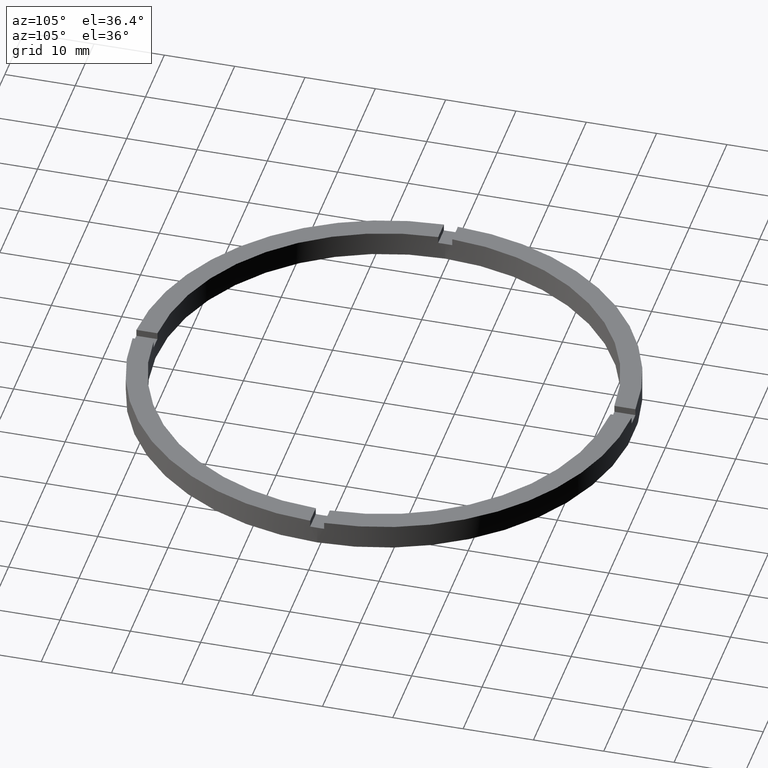
[diagram: clean part render]
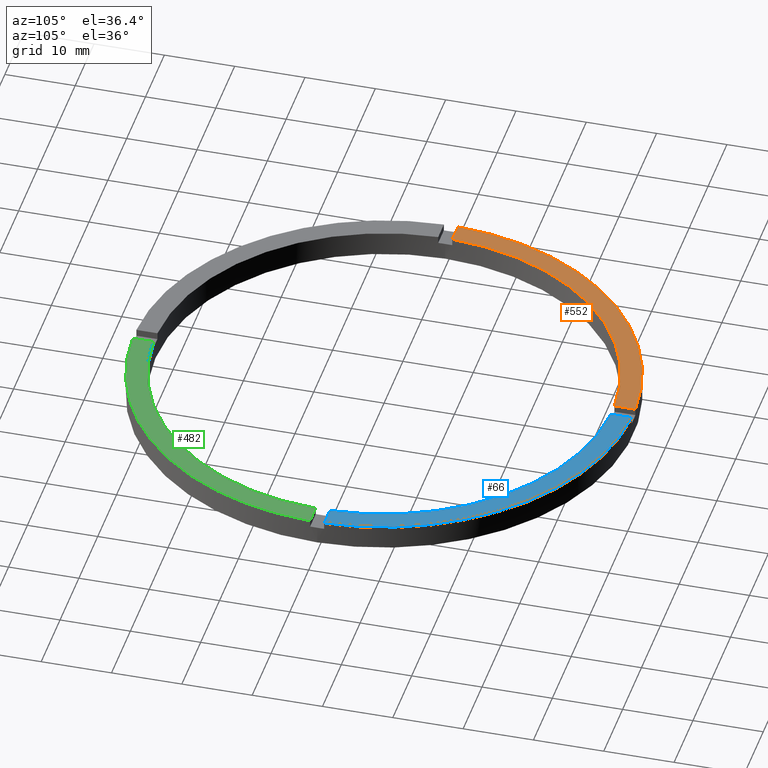
[diagram: same view with three faces highlighted in distinct colors, each labeled with its STEP entity id]
A machine part, auxiliary view with three faces highlighted in distinct colors.
Their STEP definitions:

[orange] entity #552 — the highlighted planar face has unit normal (0, 0, 1).
#3 = LINE ( 'NONE', #382, #281 ) ;
#27 = DIRECTION ( 'NONE',  ( 0.000000000000000000, 0.000000000000000000, 1.000000000000000000 ) ) ;
#45 = DIRECTION ( 'NONE',  ( 1.000000000000000000, 0.000000000000000000, -0.000000000000000000 ) ) ;
#143 = AXIS2_PLACEMENT_3D ( 'NONE', #596, #181, #45 ) ;
#160 = LINE ( 'NONE', #652, #414 ) ;
#181 = DIRECTION ( 'NONE',  ( 0.000000000000000000, 0.000000000000000000, 1.000000000000000000 ) ) ;
#189 = DIRECTION ( 'NONE',  ( -1.000000000000000000, -1.951563910473907735E-16, 0.000000000000000000 ) ) ;
#203 = VERTEX_POINT ( 'NONE', #615 ) ;
#204 = ORIENTED_EDGE ( 'NONE', *, *, #222, .F. ) ;
#207 = EDGE_LOOP ( 'NONE', ( #742, #699, #204, #744 ) ) ;
#222 = EDGE_CURVE ( 'NONE', #714, #607, #160, .T. ) ;
#227 = CARTESIAN_POINT ( 'NONE',  ( 0.000000000000000000, 0.000000000000000000, 3.500000000000000000 ) ) ;
#251 = EDGE_CURVE ( 'NONE', #203, #607, #409, .T. ) ;
#261 = CARTESIAN_POINT ( 'NONE',  ( -35.48591269785801217, 0.9999999999999731326, 3.500000000000000000 ) ) ;
#267 = CARTESIAN_POINT ( 'NONE',  ( 0.000000000000000000, 0.000000000000000000, 3.500000000000000000 ) ) ;
#277 = CIRCLE ( 'NONE', #594, 32.50000000000000000 ) ;
#281 = VECTOR ( 'NONE', #763, 1000.000000000000000 ) ;
#310 = DIRECTION ( 'NONE',  ( 1.000000000000000000, 0.000000000000000000, 0.000000000000000000 ) ) ;
#352 = DIRECTION ( 'NONE',  ( 0.000000000000000000, 0.000000000000000000, 1.000000000000000000 ) ) ;
#354 = FACE_OUTER_BOUND ( 'NONE', #207, .T. ) ;
#382 = CARTESIAN_POINT ( 'NONE',  ( -1.000000000000024869, 25.50000000000000355, 3.500000000000000000 ) ) ;
#409 = CIRCLE ( 'NONE', #704, 35.50000000000000711 ) ;
#414 = VECTOR ( 'NONE', #189, 1000.000000000000000 ) ;
#552 = ADVANCED_FACE ( 'NONE', ( #354 ), #657, .T. ) ;
#578 = CARTESIAN_POINT ( 'NONE',  ( -32.48461174156157227, 0.9999999999999737987, 3.500000000000000000 ) ) ;
#581 = DIRECTION ( 'NONE',  ( 1.000000000000000000, 0.000000000000000000, 0.000000000000000000 ) ) ;
#594 = AXIS2_PLACEMENT_3D ( 'NONE', #227, #27, #581 ) ;
#596 = CARTESIAN_POINT ( 'NONE',  ( 0.000000000000000000, 0.000000000000000000, 3.500000000000000000 ) ) ;
#607 = VERTEX_POINT ( 'NONE', #261 ) ;
#615 = CARTESIAN_POINT ( 'NONE',  ( -1.000000000000024869, 35.48591269785801217, 3.500000000000000000 ) ) ;
#652 = CARTESIAN_POINT ( 'NONE',  ( -25.50000000000018829, 0.9999999999999751310, 3.500000000000000000 ) ) ;
#657 = PLANE ( 'NONE',  #143 ) ;
#693 = CARTESIAN_POINT ( 'NONE',  ( -1.000000000000024869, 32.48461174156157227, 3.500000000000000000 ) ) ;
#699 = ORIENTED_EDGE ( 'NONE', *, *, #251, .T. ) ;
#704 = AXIS2_PLACEMENT_3D ( 'NONE', #267, #352, #310 ) ;
#714 = VERTEX_POINT ( 'NONE', #578 ) ;
#721 = EDGE_CURVE ( 'NONE', #203, #725, #3, .T. ) ;
#725 = VERTEX_POINT ( 'NONE', #693 ) ;
#736 = EDGE_CURVE ( 'NONE', #725, #714, #277, .T. ) ;
#742 = ORIENTED_EDGE ( 'NONE', *, *, #721, .F. ) ;
#744 = ORIENTED_EDGE ( 'NONE', *, *, #736, .F. ) ;
#763 = DIRECTION ( 'NONE',  ( -0.000000000000000000, -1.000000000000000000, -0.000000000000000000 ) ) ;

[blue] entity #66 — the highlighted planar face has unit normal (0, 0, 1).
#31 = CARTESIAN_POINT ( 'NONE',  ( 0.000000000000000000, 0.000000000000000000, 3.500000000000000000 ) ) ;
#41 = EDGE_CURVE ( 'NONE', #183, #475, #696, .T. ) ;
#48 = VERTEX_POINT ( 'NONE', #253 ) ;
#66 = ADVANCED_FACE ( 'NONE', ( #458 ), #769, .T. ) ;
#72 = CIRCLE ( 'NONE', #305, 35.50000000000000711 ) ;
#79 = DIRECTION ( 'NONE',  ( 1.000000000000000000, 0.000000000000000000, -0.000000000000000000 ) ) ;
#86 = VECTOR ( 'NONE', #423, 1000.000000000000000 ) ;
#99 = DIRECTION ( 'NONE',  ( 1.000000000000000000, 0.000000000000000000, 0.000000000000000000 ) ) ;
#108 = CARTESIAN_POINT ( 'NONE',  ( 0.9999999999999751310, 35.48591269785801217, 3.500000000000000000 ) ) ;
#109 = ORIENTED_EDGE ( 'NONE', *, *, #315, .F. ) ;
#129 = ORIENTED_EDGE ( 'NONE', *, *, #572, .F. ) ;
#147 = LINE ( 'NONE', #333, #424 ) ;
#183 = VERTEX_POINT ( 'NONE', #573 ) ;
#206 = CARTESIAN_POINT ( 'NONE',  ( 0.000000000000000000, 0.000000000000000000, 3.500000000000000000 ) ) ;
#241 = DIRECTION ( 'NONE',  ( 0.000000000000000000, 0.000000000000000000, 1.000000000000000000 ) ) ;
#246 = DIRECTION ( 'NONE',  ( 0.000000000000000000, 1.000000000000000000, 0.000000000000000000 ) ) ;
#253 = CARTESIAN_POINT ( 'NONE',  ( 35.48591269785801927, 0.9999999999998421263, 3.500000000000000000 ) ) ;
#297 = AXIS2_PLACEMENT_3D ( 'NONE', #31, #241, #79 ) ;
#305 = AXIS2_PLACEMENT_3D ( 'NONE', #206, #751, #99 ) ;
#315 = EDGE_CURVE ( 'NONE', #475, #480, #147, .T. ) ;
#333 = CARTESIAN_POINT ( 'NONE',  ( 0.9999999999999751310, 25.50000000000000355, 3.500000000000000000 ) ) ;
#400 = DIRECTION ( 'NONE',  ( 0.000000000000000000, 0.000000000000000000, 1.000000000000000000 ) ) ;
#407 = EDGE_LOOP ( 'NONE', ( #109, #487, #129, #425 ) ) ;
#423 = DIRECTION ( 'NONE',  ( -1.000000000000000000, -6.505213034913025371E-17, -0.000000000000000000 ) ) ;
#424 = VECTOR ( 'NONE', #246, 1000.000000000000000 ) ;
#425 = ORIENTED_EDGE ( 'NONE', *, *, #565, .T. ) ;
#458 = FACE_OUTER_BOUND ( 'NONE', #407, .T. ) ;
#475 = VERTEX_POINT ( 'NONE', #645 ) ;
#480 = VERTEX_POINT ( 'NONE', #108 ) ;
#487 = ORIENTED_EDGE ( 'NONE', *, *, #41, .F. ) ;
#520 = AXIS2_PLACEMENT_3D ( 'NONE', #547, #400, #553 ) ;
#547 = CARTESIAN_POINT ( 'NONE',  ( 0.000000000000000000, 0.000000000000000000, 3.500000000000000000 ) ) ;
#553 = DIRECTION ( 'NONE',  ( 1.000000000000000000, 0.000000000000000000, 0.000000000000000000 ) ) ;
#559 = CARTESIAN_POINT ( 'NONE',  ( 25.49999999999999645, 0.9999999999998414602, 3.500000000000000000 ) ) ;
#565 = EDGE_CURVE ( 'NONE', #48, #480, #72, .T. ) ;
#572 = EDGE_CURVE ( 'NONE', #48, #183, #620, .T. ) ;
#573 = CARTESIAN_POINT ( 'NONE',  ( 32.48461174156157938, 0.9999999999998419042, 3.500000000000000000 ) ) ;
#620 = LINE ( 'NONE', #559, #86 ) ;
#645 = CARTESIAN_POINT ( 'NONE',  ( 0.9999999999999751310, 32.48461174156157227, 3.500000000000000000 ) ) ;
#696 = CIRCLE ( 'NONE', #520, 32.50000000000000000 ) ;
#751 = DIRECTION ( 'NONE',  ( 0.000000000000000000, 0.000000000000000000, 1.000000000000000000 ) ) ;
#769 = PLANE ( 'NONE',  #297 ) ;

[green] entity #482 — the highlighted planar face has unit normal (0, 0, 1).
#51 = DIRECTION ( 'NONE',  ( 1.000000000000000000, 0.000000000000000000, -0.000000000000000000 ) ) ;
#60 = EDGE_LOOP ( 'NONE', ( #647, #648, #226, #515 ) ) ;
#93 = CARTESIAN_POINT ( 'NONE',  ( 0.000000000000000000, 0.000000000000000000, 3.500000000000000000 ) ) ;
#151 = CIRCLE ( 'NONE', #270, 35.50000000000000711 ) ;
#205 = VERTEX_POINT ( 'NONE', #674 ) ;
#215 = CARTESIAN_POINT ( 'NONE',  ( 25.49999999999999645, -1.000000000000158540, 3.500000000000000000 ) ) ;
#226 = ORIENTED_EDGE ( 'NONE', *, *, #777, .F. ) ;
#237 = CARTESIAN_POINT ( 'NONE',  ( 0.000000000000000000, 0.000000000000000000, 3.500000000000000000 ) ) ;
#266 = VECTOR ( 'NONE', #491, 1000.000000000000000 ) ;
#268 = VECTOR ( 'NONE', #685, 1000.000000000000000 ) ;
#270 = AXIS2_PLACEMENT_3D ( 'NONE', #237, #690, #550 ) ;
#271 = LINE ( 'NONE', #215, #266 ) ;
#289 = EDGE_CURVE ( 'NONE', #418, #686, #151, .T. ) ;
#293 = DIRECTION ( 'NONE',  ( 1.000000000000000000, 0.000000000000000000, 0.000000000000000000 ) ) ;
#322 = EDGE_CURVE ( 'NONE', #626, #205, #682, .T. ) ;
#373 = AXIS2_PLACEMENT_3D ( 'NONE', #93, #603, #51 ) ;
#384 = FACE_OUTER_BOUND ( 'NONE', #60, .T. ) ;
#418 = VERTEX_POINT ( 'NONE', #582 ) ;
#482 = ADVANCED_FACE ( 'NONE', ( #384 ), #595, .T. ) ;
#486 = AXIS2_PLACEMENT_3D ( 'NONE', #575, #502, #293 ) ;
#491 = DIRECTION ( 'NONE',  ( 1.000000000000000000, 6.505213034913025371E-17, 0.000000000000000000 ) ) ;
#502 = DIRECTION ( 'NONE',  ( 0.000000000000000000, 0.000000000000000000, 1.000000000000000000 ) ) ;
#515 = ORIENTED_EDGE ( 'NONE', *, *, #289, .T. ) ;
#541 = LINE ( 'NONE', #624, #268 ) ;
#550 = DIRECTION ( 'NONE',  ( 1.000000000000000000, 0.000000000000000000, 0.000000000000000000 ) ) ;
#574 = CARTESIAN_POINT ( 'NONE',  ( 0.9999999999998393507, -32.48461174156157938, 3.500000000000000000 ) ) ;
#575 = CARTESIAN_POINT ( 'NONE',  ( 0.000000000000000000, 0.000000000000000000, 3.500000000000000000 ) ) ;
#582 = CARTESIAN_POINT ( 'NONE',  ( 0.9999999999998397948, -35.48591269785801927, 3.500000000000000000 ) ) ;
#584 = CARTESIAN_POINT ( 'NONE',  ( 35.48591269785800506, -1.000000000000157874, 3.500000000000000000 ) ) ;
#595 = PLANE ( 'NONE',  #373 ) ;
#603 = DIRECTION ( 'NONE',  ( 0.000000000000000000, 0.000000000000000000, 1.000000000000000000 ) ) ;
#624 = CARTESIAN_POINT ( 'NONE',  ( 0.9999999999998384625, -25.50000000000018119, 3.500000000000000000 ) ) ;
#626 = VERTEX_POINT ( 'NONE', #574 ) ;
#647 = ORIENTED_EDGE ( 'NONE', *, *, #659, .F. ) ;
#648 = ORIENTED_EDGE ( 'NONE', *, *, #322, .F. ) ;
#659 = EDGE_CURVE ( 'NONE', #205, #686, #271, .T. ) ;
#674 = CARTESIAN_POINT ( 'NONE',  ( 32.48461174156157227, -1.000000000000158096, 3.500000000000000000 ) ) ;
#682 = CIRCLE ( 'NONE', #486, 32.50000000000000000 ) ;
#685 = DIRECTION ( 'NONE',  ( -1.301042606982605074E-16, 1.000000000000000000, -0.000000000000000000 ) ) ;
#686 = VERTEX_POINT ( 'NONE', #584 ) ;
#690 = DIRECTION ( 'NONE',  ( 0.000000000000000000, 0.000000000000000000, 1.000000000000000000 ) ) ;
#777 = EDGE_CURVE ( 'NONE', #418, #626, #541, .T. ) ;